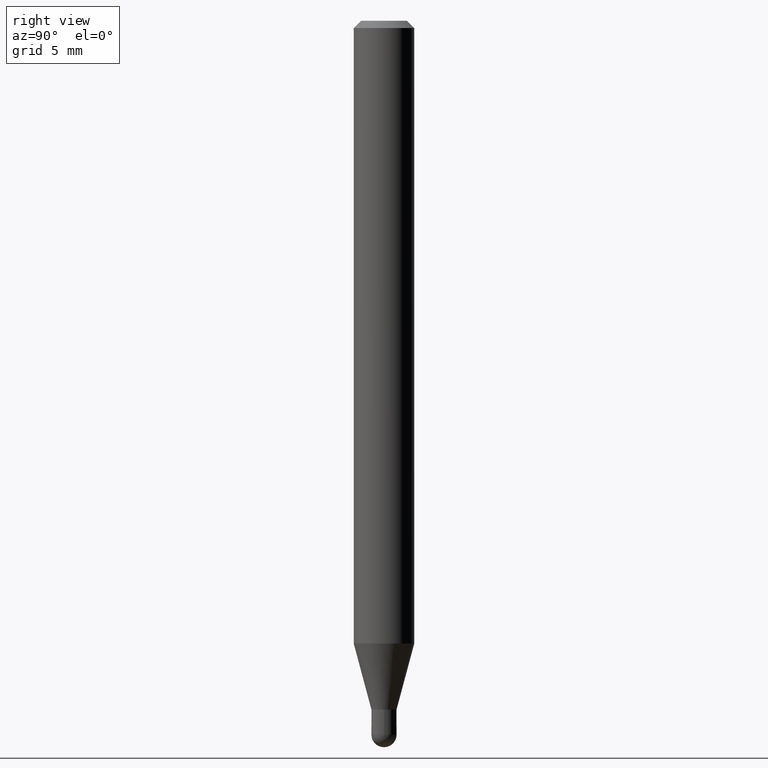
[diagram: clean part render]
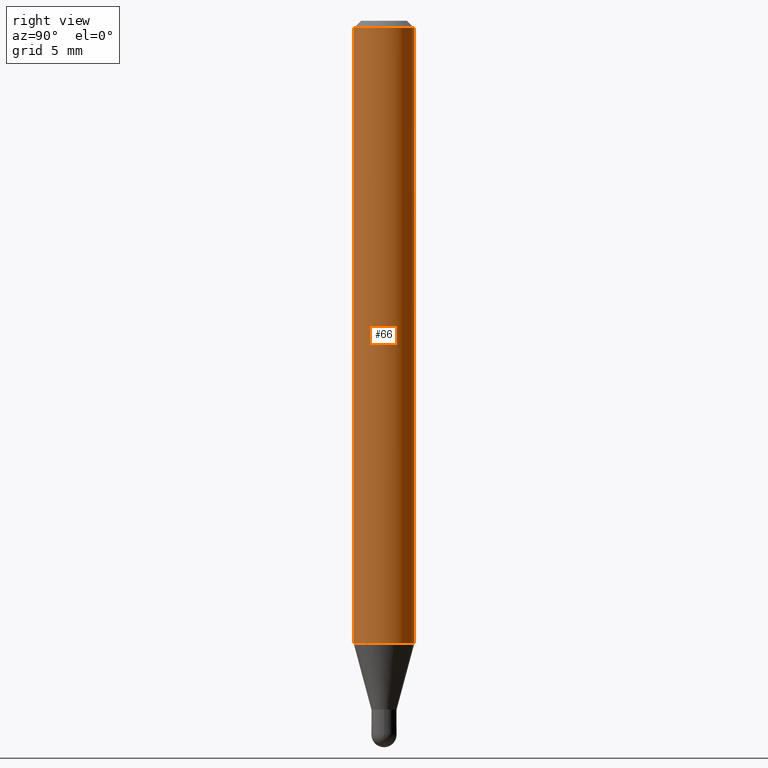
[diagram: same view with one face highlighted and labeled with its STEP entity id]
A machine part, right view. The second image highlights one B-rep face of the part: STEP entity #66.
In plain terms, the highlighted cylindrical surface (edge-blend (fillet) strip) has radius 1.5875 mm, axis along (-0, 0, 1).
Its self-contained STEP definition (entity closure, byte-faithful):
#3 = CARTESIAN_POINT ( 'NONE',  ( -4.364351673553603615E-16, -0.06250000000000451028, -1.285780145523740092 ) ) ;
#9 = VERTEX_POINT ( 'NONE', #3 ) ;
#21 = FACE_OUTER_BOUND ( 'NONE', #393, .T. ) ;
#29 = DIRECTION ( 'NONE',  ( -2.445454582706433813E-29, 3.491501707674197965E-15, 1.000000000000000000 ) ) ;
#31 = VECTOR ( 'NONE', #29, 39.37007874015748143 ) ;
#34 = ORIENTED_EDGE ( 'NONE', *, *, #139, .T. ) ;
#52 = DIRECTION ( 'NONE',  ( -6.982962677686265922E-15, -1.000000000000000000, 3.491501707674197571E-15 ) ) ;
#66 = ADVANCED_FACE ( 'NONE', ( #21 ), #462, .T. ) ;
#68 = ORIENTED_EDGE ( 'NONE', *, *, #330, .T. ) ;
#91 = AXIS2_PLACEMENT_3D ( 'NONE', #421, #140, #52 ) ;
#125 = VERTEX_POINT ( 'NONE', #494 ) ;
#139 = EDGE_CURVE ( 'NONE', #9, #415, #176, .T. ) ;
#140 = DIRECTION ( 'NONE',  ( -2.445454582706434094E-29, 3.491501707674197965E-15, 1.000000000000000000 ) ) ;
#146 = CARTESIAN_POINT ( 'NONE',  ( 4.440892098500625669E-16, 0.06250000000000000000, -2.182188567296373482E-16 ) ) ;
#176 = CIRCLE ( 'NONE', #469, 0.06250000000000000000 ) ;
#193 = VERTEX_POINT ( 'NONE', #304 ) ;
#198 = CARTESIAN_POINT ( 'NONE',  ( 4.440892098500937762E-16, 0.06249999999999548972, -1.285780145523740536 ) ) ;
#215 = DIRECTION ( 'NONE',  ( -2.445454582706434094E-29, 3.491501707674197965E-15, 1.000000000000000000 ) ) ;
#236 = AXIS2_PLACEMENT_3D ( 'NONE', #243, #446, #365 ) ;
#243 = CARTESIAN_POINT ( 'NONE',  ( 3.668181874059653067E-31, -5.237252561511299906E-17, -0.01500000000000000812 ) ) ;
#245 = CIRCLE ( 'NONE', #236, 0.06250000000000000000 ) ;
#266 = EDGE_CURVE ( 'NONE', #9, #193, #437, .T. ) ;
#290 = ORIENTED_EDGE ( 'NONE', *, *, #459, .F. ) ;
#304 = CARTESIAN_POINT ( 'NONE',  ( -4.364351673553912750E-16, -0.06250000000000005551, -0.01499999999999979128 ) ) ;
#330 = EDGE_CURVE ( 'NONE', #415, #125, #354, .T. ) ;
#337 = DIRECTION ( 'NONE',  ( -6.982962677686265922E-15, -1.000000000000000000, 4.370956789862821150E-15 ) ) ;
#344 = VECTOR ( 'NONE', #500, 39.37007874015748143 ) ;
#354 = LINE ( 'NONE', #146, #344 ) ;
#365 = DIRECTION ( 'NONE',  ( -6.982962677686265922E-15, -1.000000000000000000, 3.483106191921935554E-15 ) ) ;
#393 = EDGE_LOOP ( 'NONE', ( #34, #68, #290, #508 ) ) ;
#396 = CARTESIAN_POINT ( 'NONE',  ( -4.364351673553916201E-16, -0.06250000000000000000, 2.182188567296373482E-16 ) ) ;
#415 = VERTEX_POINT ( 'NONE', #198 ) ;
#421 = CARTESIAN_POINT ( 'NONE',  ( 0.000000000000000000, 0.000000000000000000, 0.000000000000000000 ) ) ;
#429 = CARTESIAN_POINT ( 'NONE',  ( 3.144316949223975890E-29, -4.489303573789717713E-15, -1.285780145523740314 ) ) ;
#437 = LINE ( 'NONE', #396, #31 ) ;
#446 = DIRECTION ( 'NONE',  ( -2.445454582706434094E-29, 3.491501707674197965E-15, 1.000000000000000000 ) ) ;
#459 = EDGE_CURVE ( 'NONE', #193, #125, #245, .T. ) ;
#462 = CYLINDRICAL_SURFACE ( 'NONE', #91, 0.06250000000000000000 ) ;
#469 = AXIS2_PLACEMENT_3D ( 'NONE', #429, #215, #337 ) ;
#494 = CARTESIAN_POINT ( 'NONE',  ( 4.440892098500941706E-16, 0.06249999999999995143, -0.01500000000000022669 ) ) ;
#500 = DIRECTION ( 'NONE',  ( -2.445454582706433813E-29, 3.491501707674197965E-15, 1.000000000000000000 ) ) ;
#508 = ORIENTED_EDGE ( 'NONE', *, *, #266, .F. ) ;